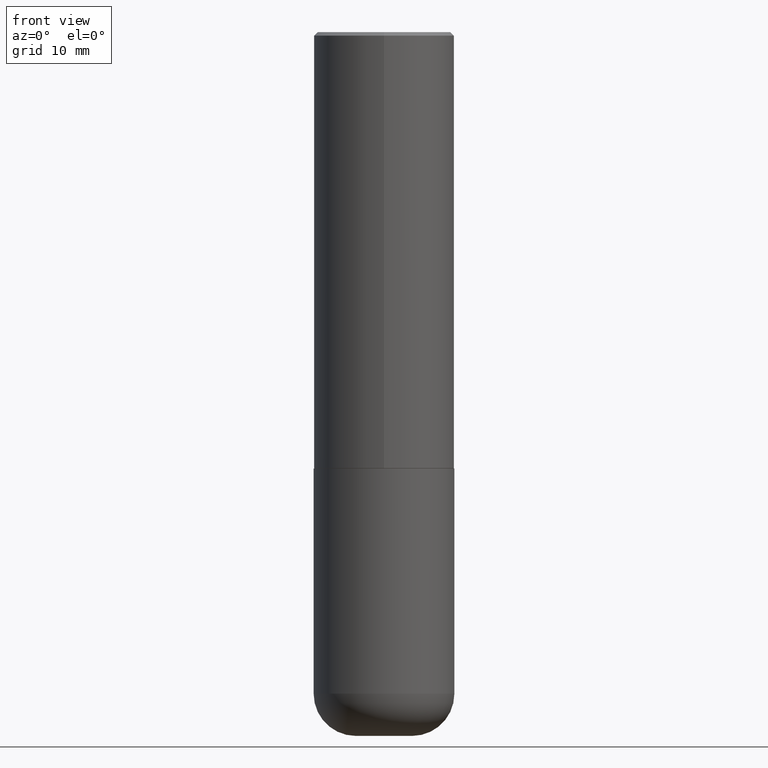
[diagram: clean part render]
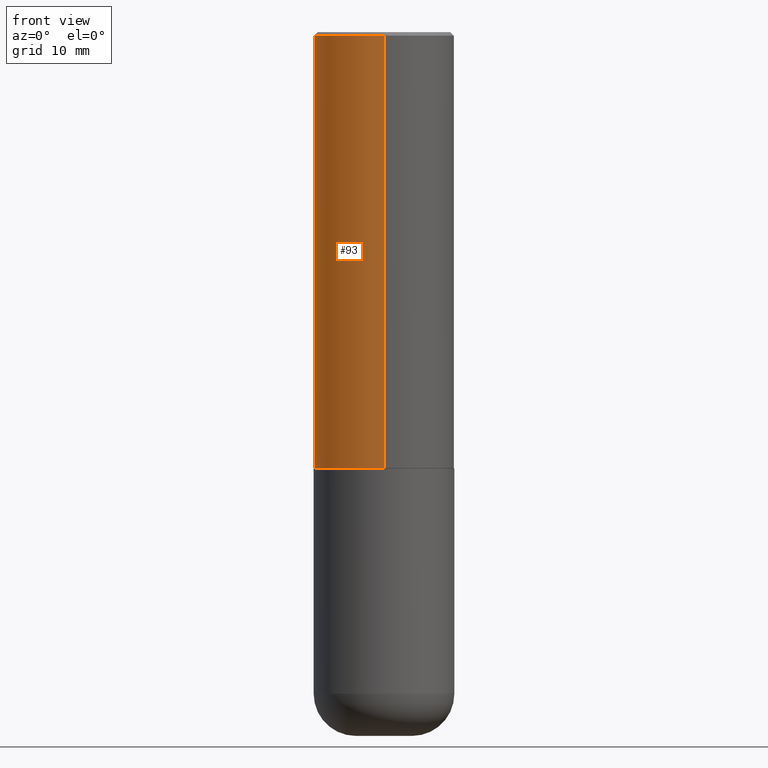
[diagram: same view with one face highlighted and labeled with its STEP entity id]
A machine part, front view. The second image highlights one B-rep face of the part: STEP entity #93.
In plain terms, the highlighted cylindrical surface (partial cylindrical patch) has radius 10 mm, axis along (-0, 0, 1).
Its self-contained STEP definition (entity closure, byte-faithful):
#9 = LINE ( 'NONE', #161, #166 ) ;
#27 = DIRECTION ( 'NONE',  ( -6.982962677686265922E-15, -1.000000000000000000, 3.469453890861393995E-15 ) ) ;
#28 = EDGE_CURVE ( 'NONE', #57, #140, #346, .T. ) ;
#32 = ORIENTED_EDGE ( 'NONE', *, *, #28, .T. ) ;
#38 = DIRECTION ( 'NONE',  ( -2.446922510361644554E-29, 3.489399551722683229E-15, 1.000000000000000000 ) ) ;
#57 = VERTEX_POINT ( 'NONE', #257 ) ;
#68 = FACE_OUTER_BOUND ( 'NONE', #181, .T. ) ;
#75 = CARTESIAN_POINT ( 'NONE',  ( -2.749192406205024841E-15, -0.3937000000000087652, -2.439899999999998847 ) ) ;
#93 = ADVANCED_FACE ( 'NONE', ( #68 ), #314, .T. ) ;
#97 = CARTESIAN_POINT ( 'NONE',  ( 2.797406750687514786E-15, 0.3937000000000001054, -1.373776603513220668E-15 ) ) ;
#101 = EDGE_CURVE ( 'NONE', #213, #240, #368, .T. ) ;
#107 = ORIENTED_EDGE ( 'NONE', *, *, #308, .F. ) ;
#127 = CARTESIAN_POINT ( 'NONE',  ( 5.970246233031377205E-29, -8.513785966248174161E-15, -2.439900000000000180 ) ) ;
#140 = VERTEX_POINT ( 'NONE', #75 ) ;
#161 = CARTESIAN_POINT ( 'NONE',  ( -2.749192406205083217E-15, -0.3937000000000001054, 1.373776603513220668E-15 ) ) ;
#164 = AXIS2_PLACEMENT_3D ( 'NONE', #127, #286, #27 ) ;
#166 = VECTOR ( 'NONE', #224, 39.37007874015748143 ) ;
#177 = ORIENTED_EDGE ( 'NONE', *, *, #290, .T. ) ;
#178 = AXIS2_PLACEMENT_3D ( 'NONE', #250, #248, #378 ) ;
#181 = EDGE_LOOP ( 'NONE', ( #107, #32, #177, #274 ) ) ;
#188 = VECTOR ( 'NONE', #38, 39.37007874015748143 ) ;
#192 = CARTESIAN_POINT ( 'NONE',  ( 4.893845020723310268E-31, -6.978799103445395153E-17, -0.02000000000000008715 ) ) ;
#213 = VERTEX_POINT ( 'NONE', #252 ) ;
#217 = DIRECTION ( 'NONE',  ( -2.446922510361644554E-29, 3.489399551722682834E-15, 1.000000000000000000 ) ) ;
#224 = DIRECTION ( 'NONE',  ( -2.446922510361644554E-29, 3.489399551722683229E-15, 1.000000000000000000 ) ) ;
#240 = VERTEX_POINT ( 'NONE', #360 ) ;
#248 = DIRECTION ( 'NONE',  ( -2.446922510361644554E-29, 3.489399551722682834E-15, 1.000000000000000000 ) ) ;
#250 = CARTESIAN_POINT ( 'NONE',  ( 0.000000000000000000, 0.000000000000000000, 0.000000000000000000 ) ) ;
#252 = CARTESIAN_POINT ( 'NONE',  ( 2.749192406205083217E-15, 0.3936999999999999389, -0.02000000000000146105 ) ) ;
#257 = CARTESIAN_POINT ( 'NONE',  ( 2.797406750687545158E-15, 0.3936999999999916677, -2.439900000000001512 ) ) ;
#261 = LINE ( 'NONE', #97, #188 ) ;
#274 = ORIENTED_EDGE ( 'NONE', *, *, #101, .F. ) ;
#286 = DIRECTION ( 'NONE',  ( -2.446922510361644554E-29, 3.489399551722682834E-15, 1.000000000000000000 ) ) ;
#290 = EDGE_CURVE ( 'NONE', #140, #240, #9, .T. ) ;
#308 = EDGE_CURVE ( 'NONE', #57, #213, #261, .T. ) ;
#314 = CYLINDRICAL_SURFACE ( 'NONE', #178, 0.3937000000000001054 ) ;
#344 = DIRECTION ( 'NONE',  ( -6.982962677686265133E-15, -1.000000000000000000, 3.491137977679279424E-15 ) ) ;
#346 = CIRCLE ( 'NONE', #164, 0.3937000000000002164 ) ;
#360 = CARTESIAN_POINT ( 'NONE',  ( -2.700978061722651252E-15, -0.3937000000000001054, -0.01999999999999870978 ) ) ;
#368 = CIRCLE ( 'NONE', #391, 0.3937000000000000499 ) ;
#378 = DIRECTION ( 'NONE',  ( -6.982962677686265133E-15, -1.000000000000000000, 3.489399551722682834E-15 ) ) ;
#391 = AXIS2_PLACEMENT_3D ( 'NONE', #192, #217, #344 ) ;